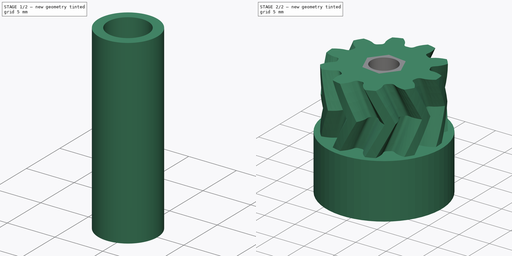
[diagram: build sequence overview — one tinted view per stage of 2, left to right]
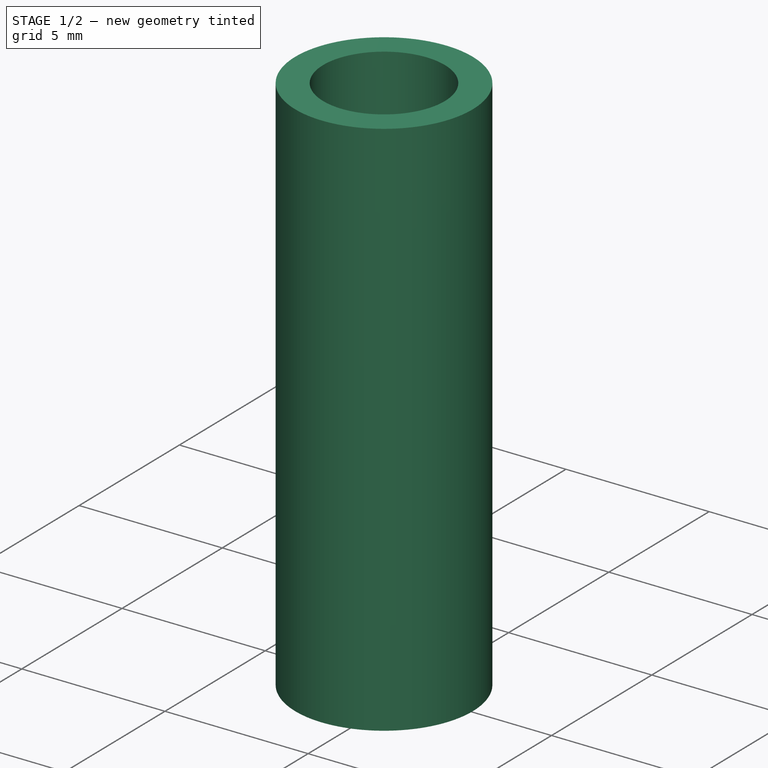
[diagram: stage 1 of 2 — iso view after this stage's code; geometry added in this stage tinted green]
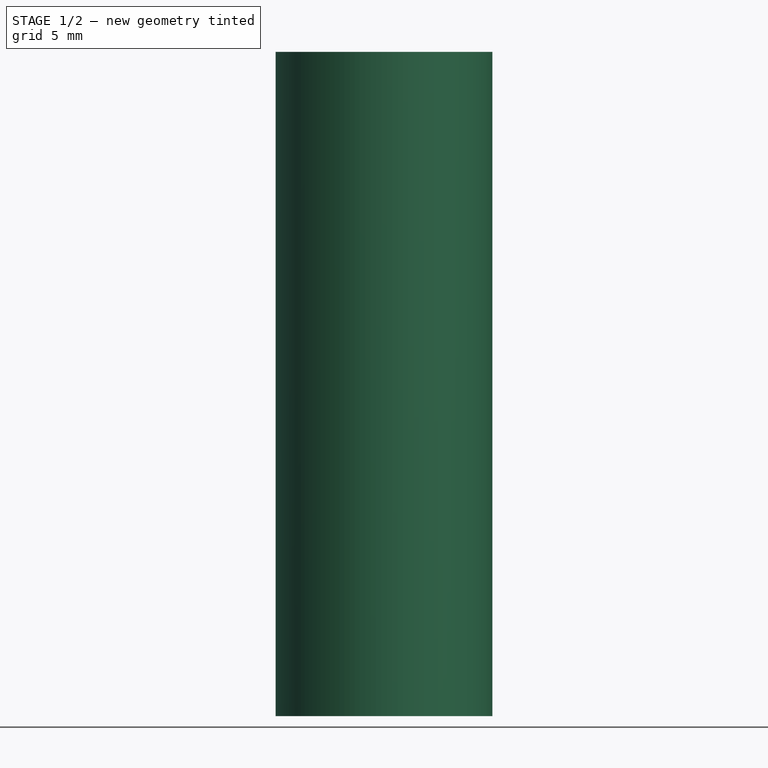
[diagram: stage 1 of 2 — front view after this stage's code; geometry added in this stage tinted green]
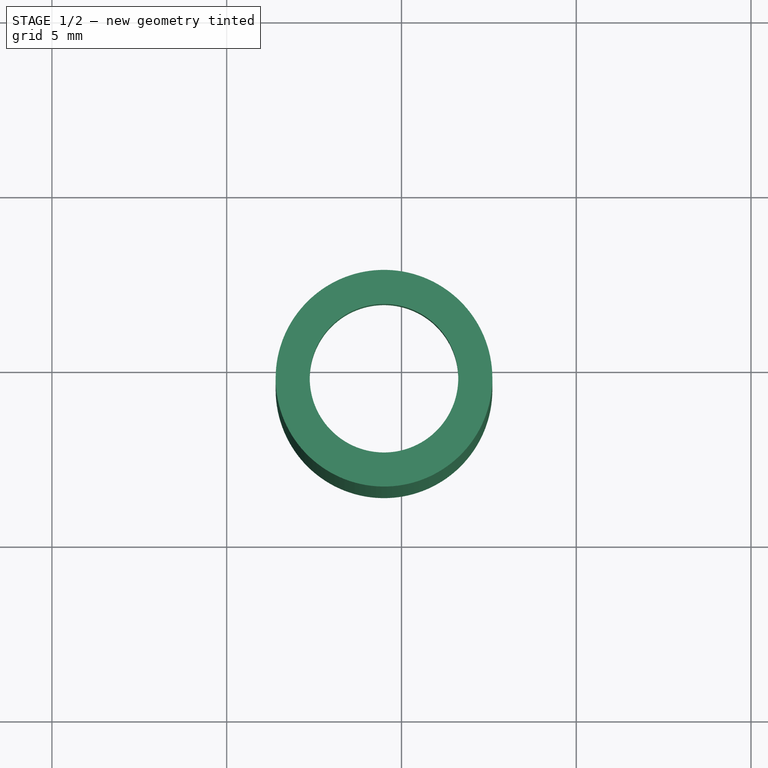
[diagram: stage 1 of 2 — top view after this stage's code; geometry added in this stage tinted green]
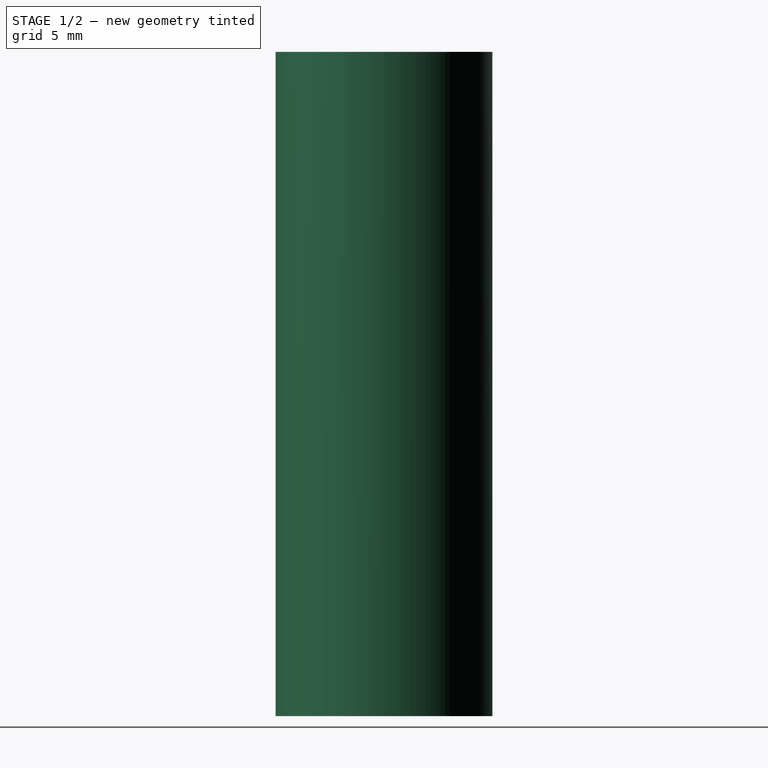
[diagram: stage 1 of 2 — right view after this stage's code; geometry added in this stage tinted green]
FCSTD DOCUMENT  (FreeCAD 0.14R3702 (Git))
Label: Little-Gear-10_tooth-modified
License: CC-BY 3.0
LicenseURL: http://creativecommons.org/licenses/by/3.0/
objects: Sketcher::SketchObject×2, PartDesign::Pad×2, Part::Feature×1, Part::MultiFuse×1
note: 8 computed .brp shape members not serialized (recipe doc carries the construction recipe); baked Part::Feature solids carry a one-line shape summary decoded from their .brp

FEATURE [Part::Feature] Little_Gear_10_tooth_Revised001_solid  label="Little_Gear_10_tooth_Revised001 (Solid)"
  shape: bbox 18.97 x 18.97 x 19 mm, 6112 faces (baked)
FEATURE [Sketcher::SketchObject] Sketch002
  Placement = pos=(9.5,9.5,0) rot=(0,0,1;0rad)
  sketch-geometry (2):
    g0: Circle CenterX=0 CenterY=0 CenterZ=0 NormalX=0 NormalY=0 NormalZ=1 Radius=2.5
    g1: Circle CenterX=0 CenterY=0 CenterZ=0 NormalX=0 NormalY=0 NormalZ=1 Radius=3.1
  constraints (4):
    c: Coincident(g0,g-1)
    c: Coincident(g1,g-1)
    c: Radius(g0) = 2.5
    c: Radius(g1) = 3.1
FEATURE [Sketcher::SketchObject] Sketch003
  Placement = pos=(9.5,9.5,17) rot=(0,0,1;0rad)
  sketch-geometry (2):
    g0: Circle CenterX=0 CenterY=0 CenterZ=0 NormalX=0 NormalY=0 NormalZ=1 Radius=2.125
    g1: Circle CenterX=0 CenterY=0 CenterZ=0 NormalX=0 NormalY=0 NormalZ=1 Radius=3.1
  constraints (4):
    c: Coincident(g0,g-1)
    c: Coincident(g1,g-1)
    c: Radius(g0) = 2.125
    c: Radius(g1) = 3.1
FEATURE [PartDesign::Pad] Pad003
  Length = 2
  Length2 = 100
  Placement = pos=(9.5,9.5,17) rot=(0,0,1;0rad)
  Sketch = -> Sketch003
  Type = 0
FEATURE [PartDesign::Pad] Pad002
  Length = 17
  Length2 = 100
  Placement = pos=(9.5,9.5,0) rot=(0,0,1;0rad)
  Sketch = -> Sketch002
  Type = 0
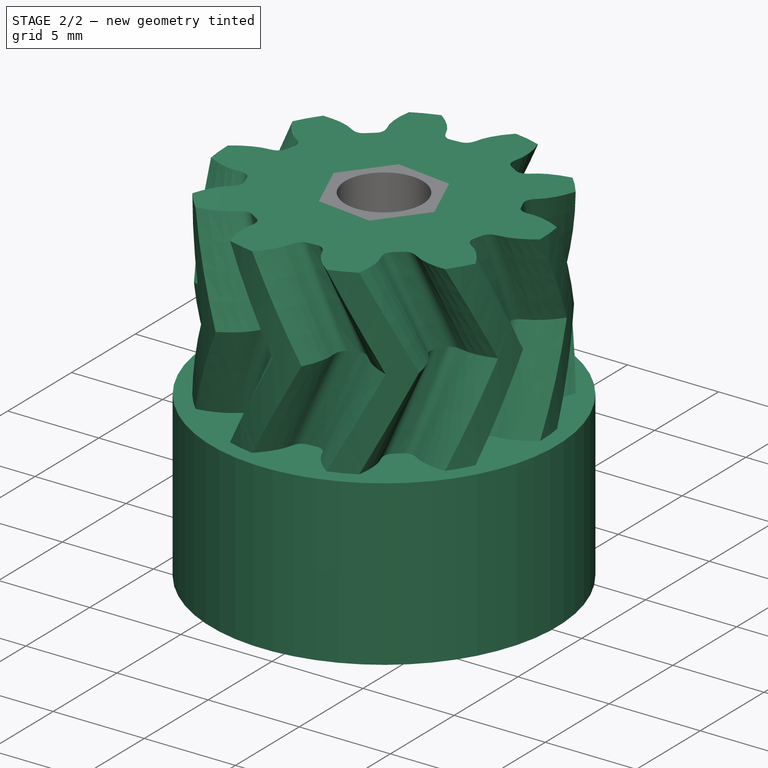
[diagram: stage 2 of 2 — iso view after this stage's code; geometry added in this stage tinted green]
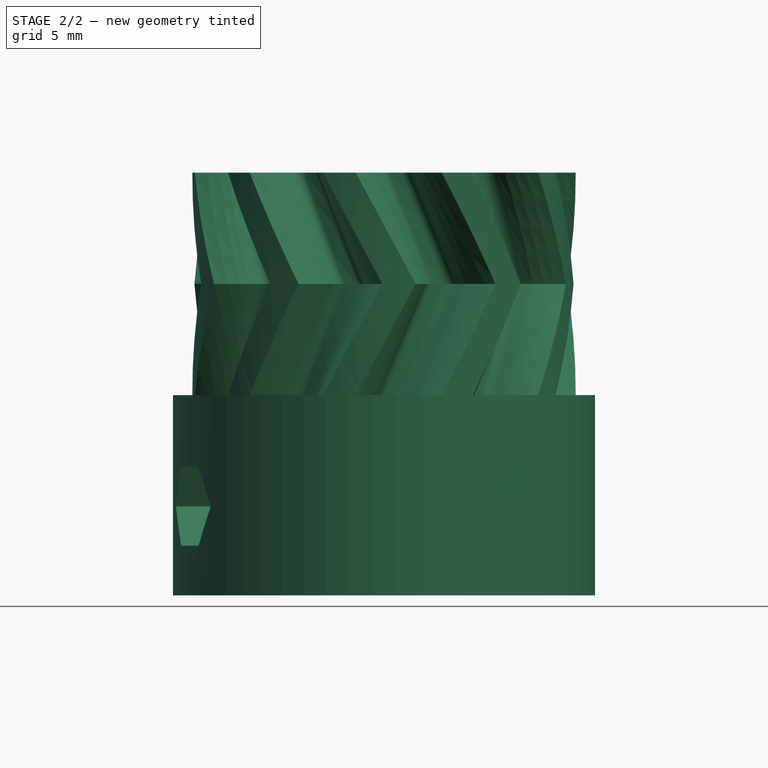
[diagram: stage 2 of 2 — front view after this stage's code; geometry added in this stage tinted green]
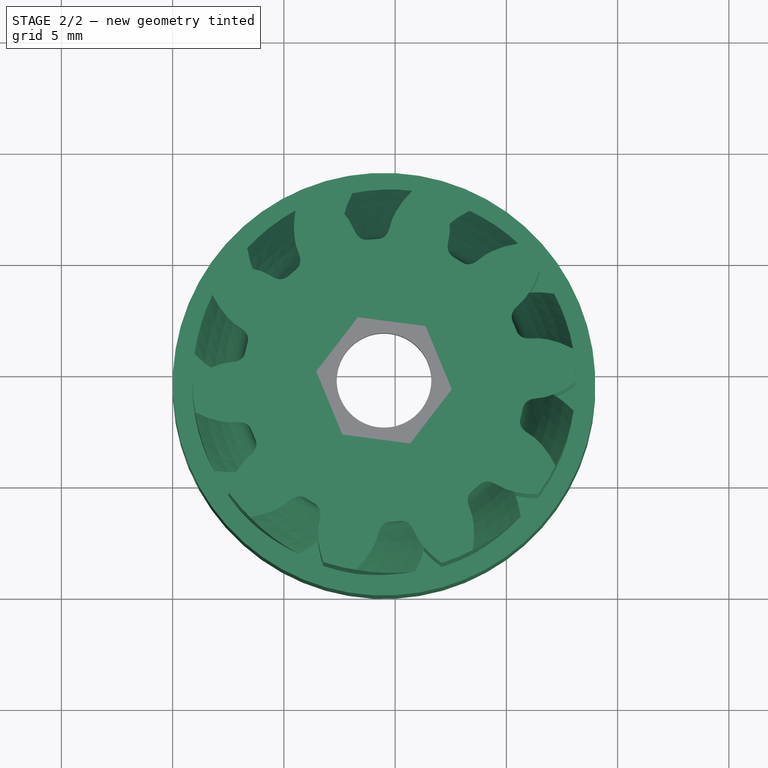
[diagram: stage 2 of 2 — top view after this stage's code; geometry added in this stage tinted green]
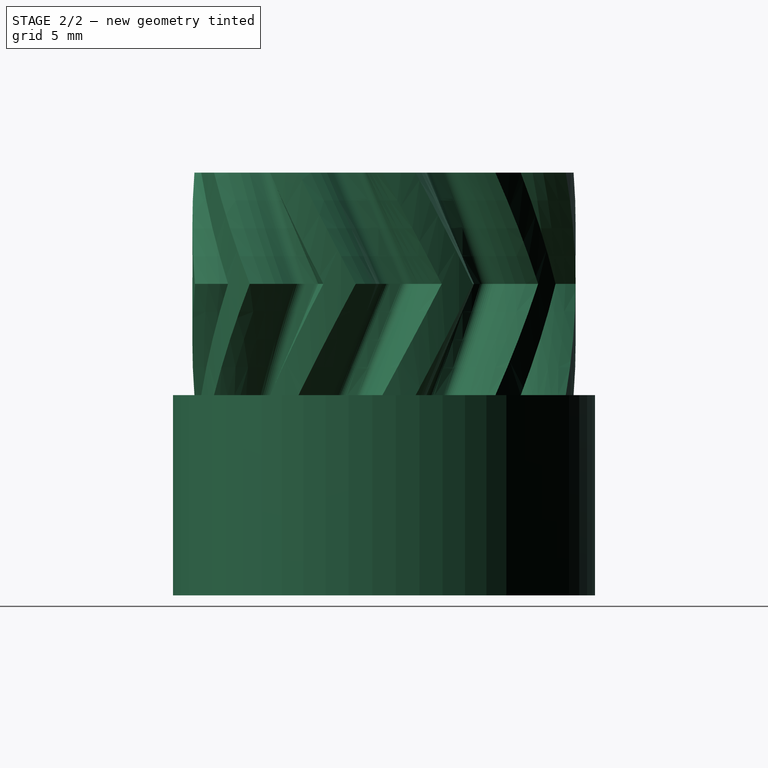
[diagram: stage 2 of 2 — right view after this stage's code; geometry added in this stage tinted green]
FEATURE [Part::MultiFuse] Fusion
  Shapes = -> [Little_Gear_10_tooth_Revised001_solid,Pad002,Pad003]
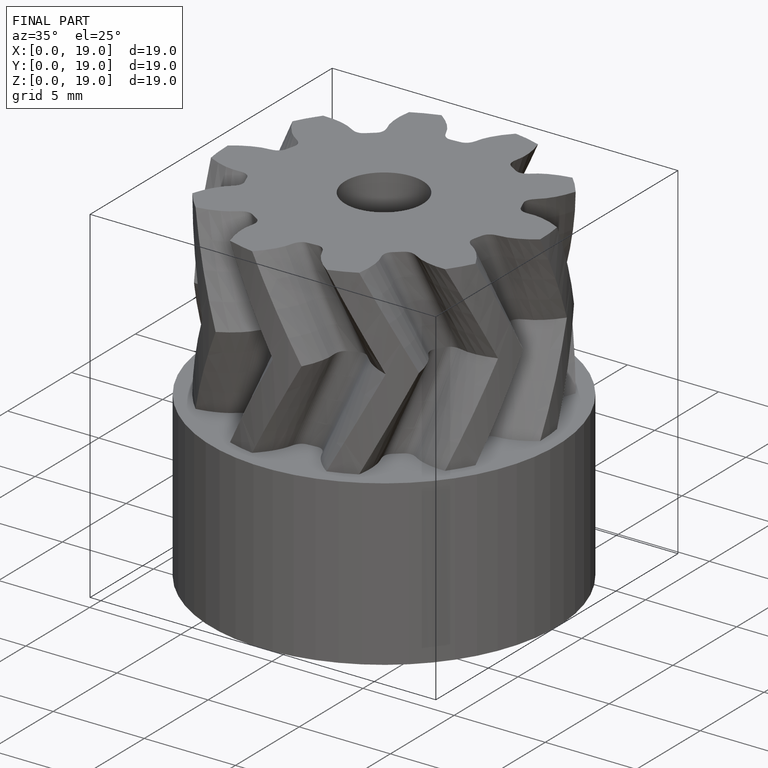
[diagram: finished part — iso view with bounding-box wireframe]
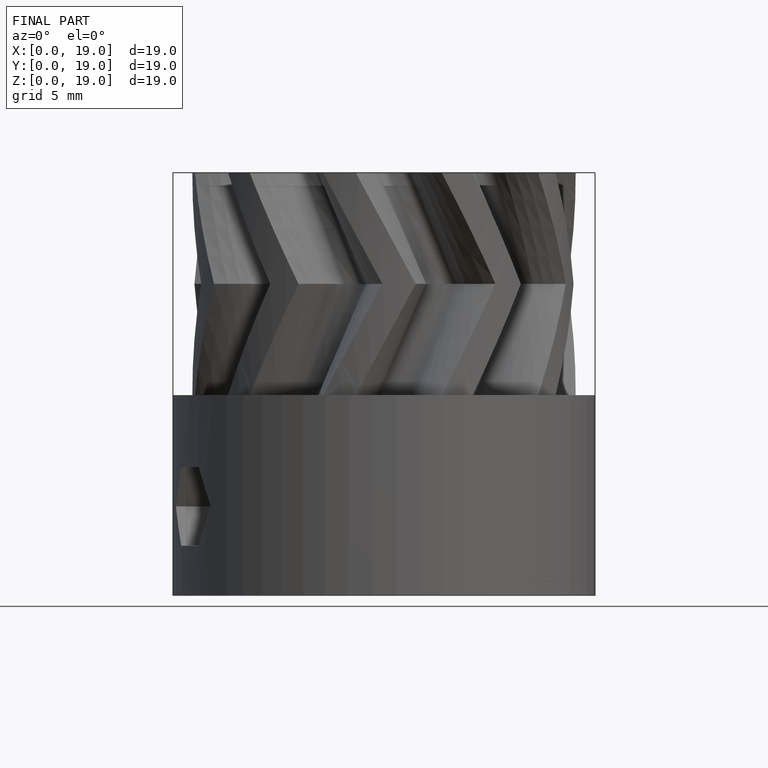
[diagram: finished part — front view with bounding-box wireframe]
